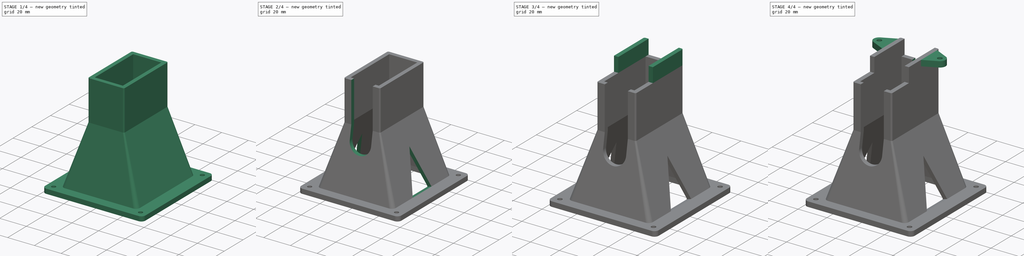
[diagram: build sequence overview — one tinted view per stage of 4, left to right]
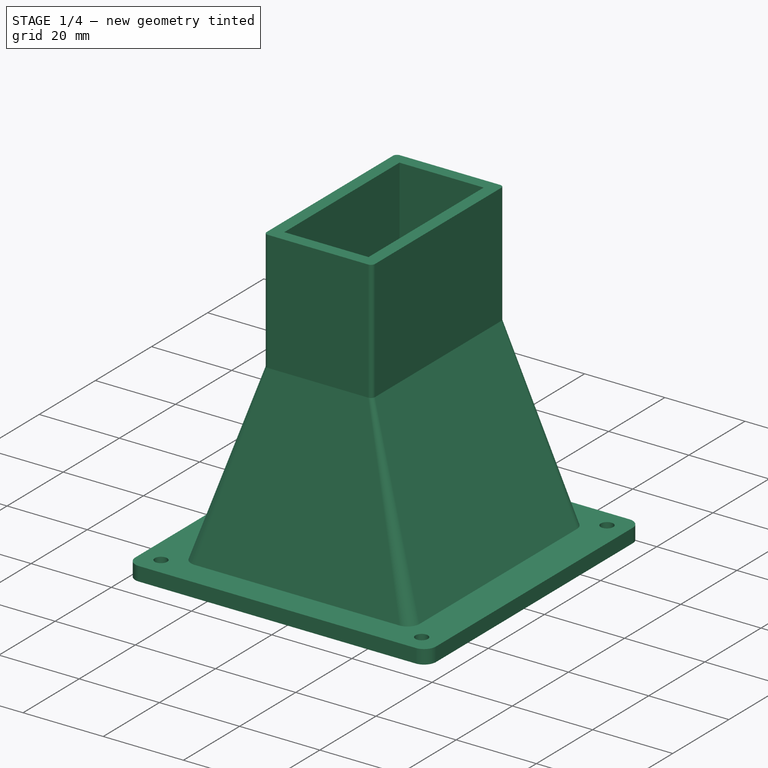
[diagram: stage 1 of 4 — iso view after this stage's code; geometry added in this stage tinted green]
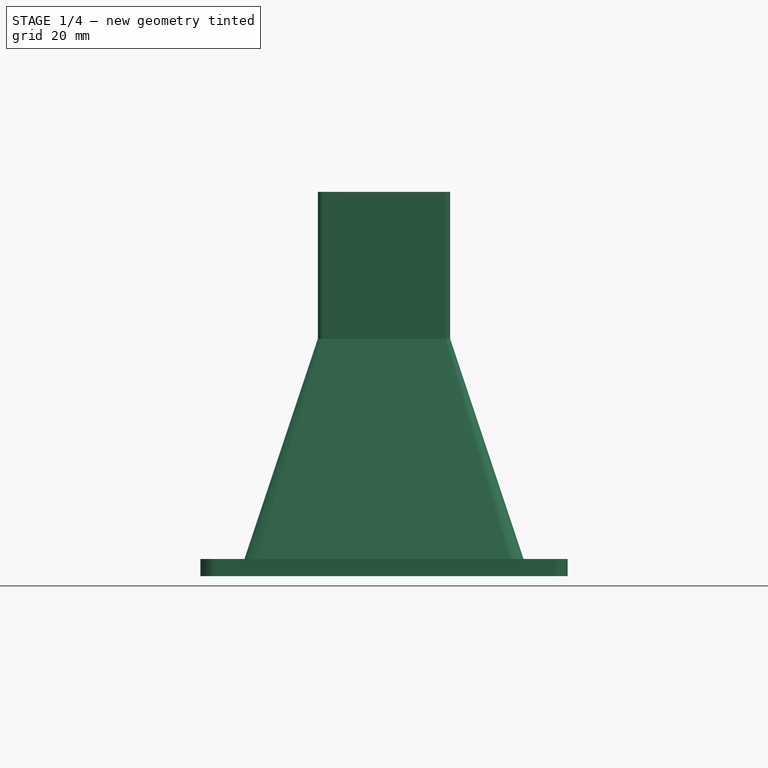
[diagram: stage 1 of 4 — front view after this stage's code; geometry added in this stage tinted green]
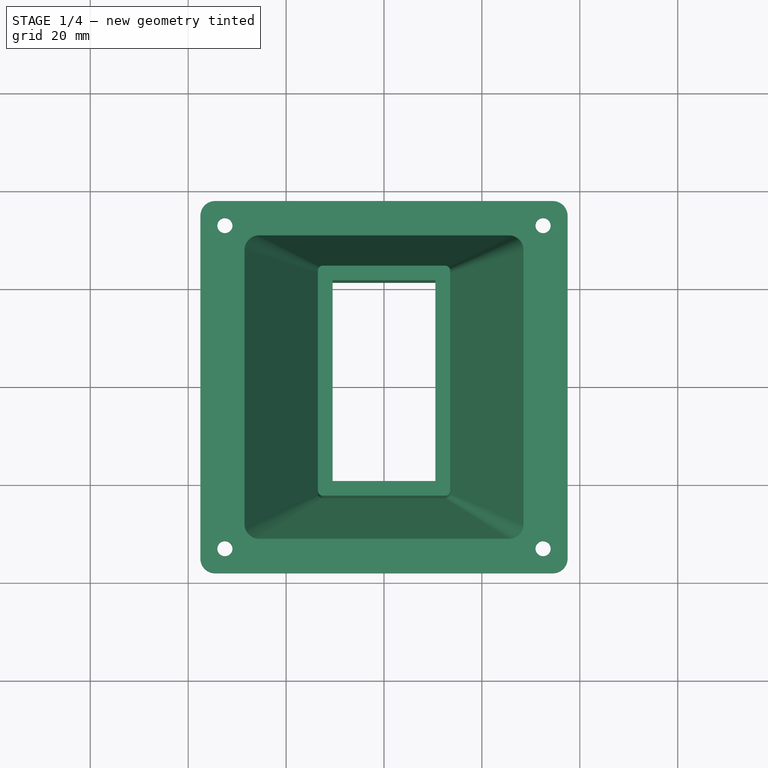
[diagram: stage 1 of 4 — top view after this stage's code; geometry added in this stage tinted green]
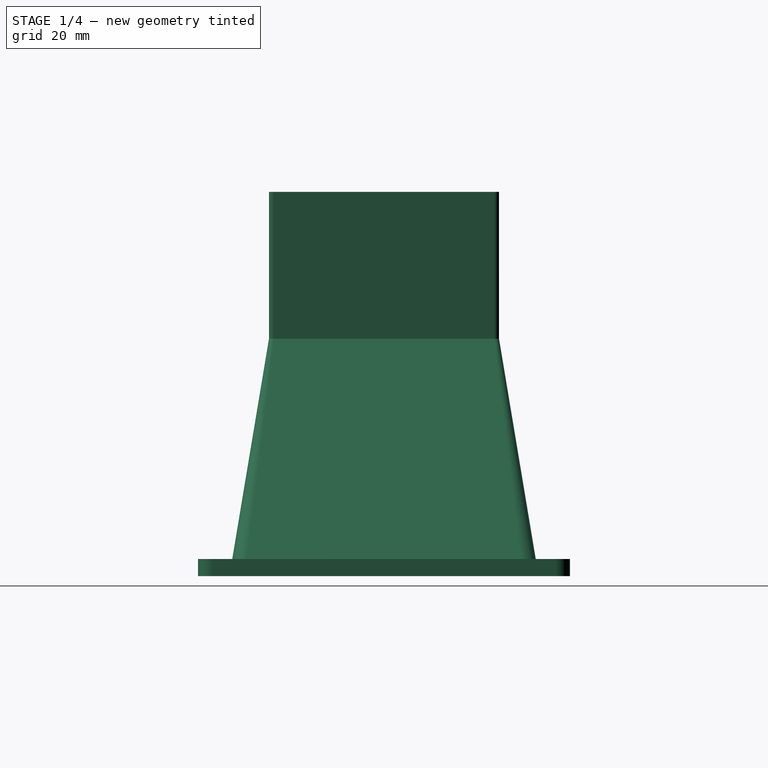
[diagram: stage 1 of 4 — right view after this stage's code; geometry added in this stage tinted green]
FCSTD DOCUMENT  (FreeCAD 0.21R33668 +26 (Git))
Label: 1_Stand_Main
License: All rights reserved
LicenseURL: http://en.wikipedia.org/wiki/All_rights_reserved
objects: Sketcher::SketchObject×8, PartDesign::Pad×4, PartDesign::Pocket×3, PartDesign::Mirrored×3, PartDesign::AdditiveLoft×1, PartDesign::Body×1
note: 28 computed .brp shape members not serialized (recipe doc carries the construction recipe); baked Part::Feature solids carry a one-line shape summary decoded from their .brp

FEATURE [Sketcher::SketchObject] Sketch  label="Base plate sketch"
  FullyConstrained = true
  MapMode = 5
  Support = -> [XY_Plane]
  sketch-geometry (20):
    g0: LineSegment StartX=-32.5 StartY=-33 StartZ=0 EndX=32.5 EndY=-33 EndZ=0
    g1: LineSegment StartX=32.5 StartY=-33 StartZ=0 EndX=32.5 EndY=33 EndZ=0
    g2: LineSegment StartX=32.5 StartY=33 StartZ=0 EndX=-32.5 EndY=33 EndZ=0
    g3: LineSegment StartX=-32.5 StartY=33 StartZ=0 EndX=-32.5 EndY=-33 EndZ=0
    g4: LineSegment StartX=-25.5 StartY=-28 StartZ=0 EndX=25.5 EndY=-28 EndZ=0
    g5: LineSegment StartX=25.5 StartY=-28 StartZ=0 EndX=25.5 EndY=28 EndZ=0
    g6: LineSegment StartX=25.5 StartY=28 StartZ=0 EndX=-25.5 EndY=28 EndZ=0
    g7: LineSegment StartX=-25.5 StartY=28 StartZ=0 EndX=-25.5 EndY=-28 EndZ=0
    g8: LineSegment StartX=-34.5 StartY=-38 StartZ=0 EndX=34.5 EndY=-38 EndZ=0
    g9: LineSegment StartX=37.5 StartY=-35 StartZ=0 EndX=37.5 EndY=35 EndZ=0
    g10: LineSegment StartX=34.5 StartY=38 StartZ=0 EndX=-34.5 EndY=38 EndZ=0
    g11: LineSegment StartX=-37.5 StartY=35 StartZ=0 EndX=-37.5 EndY=-35 EndZ=0
    g12: ArcOfCircle CenterX=-34.5 CenterY=35 CenterZ=0 NormalX=0 NormalY=0 NormalZ=1 AngleXU=0 Radius=3 StartAngle=1.5708 EndAngle=3.14159
    g13: ArcOfCircle CenterX=34.5 CenterY=35 CenterZ=0 NormalX=0 NormalY=0 NormalZ=1 AngleXU=0 Radius=3 StartAngle=-9e-16 EndAngle=1.5708
    g14: ArcOfCircle CenterX=34.5 CenterY=-35 CenterZ=0 NormalX=0 NormalY=0 NormalZ=1 AngleXU=0 Radius=3 StartAngle=4.71239 EndAngle=6.28319
    g15: ArcOfCircle CenterX=-34.5 CenterY=-35 CenterZ=0 NormalX=0 NormalY=0 NormalZ=1 AngleXU=0 Radius=3 StartAngle=3.14159 EndAngle=4.71239
    g16: Circle CenterX=-32.5 CenterY=33 CenterZ=0 NormalX=0 NormalY=0 NormalZ=1 AngleXU=0 Radius=1.55
    g17: Circle CenterX=-32.5 CenterY=-33 CenterZ=0 NormalX=0 NormalY=0 NormalZ=1 AngleXU=0 Radius=1.55
    g18: Circle CenterX=32.5 CenterY=33 CenterZ=0 NormalX=0 NormalY=0 NormalZ=1 AngleXU=0 Radius=1.55
    g19: Circle CenterX=32.5 CenterY=-33 CenterZ=0 NormalX=0 NormalY=0 NormalZ=1 AngleXU=0 Radius=1.55
  constraints (49):
    c: Coincident(g0,g1)
    c: Coincident(g1,g2)
    c: Coincident(g2,g3)
    c: Coincident(g3,g0)
    c: Horizontal(g0)
    c: Horizontal(g2)
    c: Vertical(g1)
    c: Vertical(g3)
    c: Symmetric(g0,g1,g-1)
    c: DistanceX(g2,g2) = 65
    c: DistanceY(g3,g3) = 66
    c: Coincident(g4,g5)
    c: Coincident(g5,g6)
    c: Coincident(g6,g7)
    c: Coincident(g7,g4)
    c: Horizontal(g4)
    c: Horizontal(g6)
    c: Vertical(g5)
    c: Vertical(g7)
    c: Horizontal(g8)
    c: Horizontal(g10)
    c: Vertical(g9)
    c: Vertical(g11)
    c: Tangent(g10,g12) = -1.5708
    c: Tangent(g11,g12) = -1.5708
    c: Tangent(g9,g13) = -1.5708
    c: Tangent(g10,g13) = -1.5708
    c: Tangent(g8,g14) = -1.5708
    c: Tangent(g9,g14) = -1.5708
    c: Tangent(g8,g15) = -1.5708
    c: Tangent(g11,g15) = -1.5708
    c: DistanceX(g2,g6) = 7
    c: DistanceY(g6,g2) = 5
    c: Symmetric(g4,g5,g-1)
    c: Symmetric(g11,g9,g-1)
    c: Equal(g12,g13)
    c: Equal(g13,g14)
    c: Equal(g14,g15)
    c: Radius(g12) = 3
    c: DistanceX(g1,g9) = 5
    c: DistanceY(g1,g10) = 5
    c: Equal(g16,g17)
    c: Equal(g17,g19)
    c: Equal(g19,g18)
    c: Diameter(g16) = 3.1
    c: Coincident(g16,g2)
    c: Coincident(g18,g1)
    c: Coincident(g19,g0)
    c: Coincident(g17,g0)
FEATURE [PartDesign::Pad] Pad  label="Base plate"
  Direction = (0,0,1)
  Length = 3.5
  Length2 = 10
  Profile = -> Sketch
  ReferenceAxis = -> Sketch [N_Axis]
  Type = 0
FEATURE [Sketcher::SketchObject] Sketch001  label="Stand bottom sketch"
  ExternalGeometry = -> [Pad]
  FullyConstrained = true
  MapMode = 5
  Placement = pos=(0,0,3.5) rot=(0,0,1;0rad)
  Support = -> [Pad]
  sketch-geometry (12):
    g0: LineSegment StartX=-25.5 StartY=-28 StartZ=0 EndX=25.5 EndY=-28 EndZ=0
    g1: LineSegment StartX=25.5 StartY=-28 StartZ=0 EndX=25.5 EndY=28 EndZ=0
    g2: LineSegment StartX=25.5 StartY=28 StartZ=0 EndX=-25.5 EndY=28 EndZ=0
    g3: LineSegment StartX=-25.5 StartY=28 StartZ=0 EndX=-25.5 EndY=-28 EndZ=0
    g4: LineSegment StartX=-25.5 StartY=-31 StartZ=0 EndX=25.5 EndY=-31 EndZ=0
    g5: LineSegment StartX=28.5 StartY=-28 StartZ=0 EndX=28.5 EndY=28 EndZ=0
    g6: LineSegment StartX=25.5 StartY=31 StartZ=0 EndX=-25.5 EndY=31 EndZ=0
    g7: LineSegment StartX=-28.5 StartY=28 StartZ=0 EndX=-28.5 EndY=-28 EndZ=0
    g8: ArcOfCircle CenterX=-25.5 CenterY=28 CenterZ=0 NormalX=0 NormalY=0 NormalZ=1 AngleXU=0 Radius=3 StartAngle=1.5708 EndAngle=3.14159
    g9: ArcOfCircle CenterX=25.5 CenterY=28 CenterZ=0 NormalX=0 NormalY=0 NormalZ=1 AngleXU=0 Radius=3 StartAngle=0 EndAngle=1.5708
    g10: ArcOfCircle CenterX=-25.5 CenterY=-28 CenterZ=0 NormalX=0 NormalY=0 NormalZ=1 AngleXU=0 Radius=3 StartAngle=3.14159 EndAngle=4.71239
    g11: ArcOfCircle CenterX=25.5 CenterY=-28 CenterZ=0 NormalX=0 NormalY=0 NormalZ=1 AngleXU=0 Radius=3 StartAngle=4.71239 EndAngle=6.28319
  constraints (29):
    c: Coincident(g0,g1)
    c: Coincident(g1,g2)
    c: Coincident(g2,g3)
    c: Coincident(g3,g0)
    c: Horizontal(g0)
    c: Horizontal(g2)
    c: Vertical(g1)
    c: Vertical(g3)
    c: Symmetric(g0,g1,g-1)
    c: Coincident(g2,g-3)
    c: Horizontal(g4)
    c: Horizontal(g6)
    c: Vertical(g5)
    c: Vertical(g7)
    c: Tangent(g6,g8) = -1.5708
    c: Tangent(g7,g8) = -1.5708
    c: Tangent(g5,g9) = -1.5708
    c: Tangent(g6,g9) = -1.5708
    c: Tangent(g4,g10) = -1.5708
    c: Tangent(g7,g10) = -1.5708
    c: Tangent(g4,g11) = -1.5708
    c: Tangent(g5,g11) = -1.5708
    c: Equal(g8,g9)
    c: Equal(g9,g10)
    c: Equal(g10,g11)
    c: Radius(g8) = 3
    c: Symmetric(g4,g6,g-1)
    c: DistanceX(g7,g2) = 3
    c: DistanceY(g2,g6) = 3
FEATURE [Sketcher::SketchObject] Sketch002  label="Stand top sketch"
  AttachmentOffset = pos=(0,0,45) rot=(0,0,1;0rad)
  FullyConstrained = true
  MapMode = 5
  Placement = pos=(0,0,48.5) rot=(0,0,1;0rad)
  Support = -> [Pad]
  sketch-geometry (12):
    g0: LineSegment StartX=-10.5 StartY=-20.5 StartZ=0 EndX=10.5 EndY=-20.5 EndZ=0
    g1: LineSegment StartX=10.5 StartY=-20.5 StartZ=0 EndX=10.5 EndY=20.5 EndZ=0
    g2: LineSegment StartX=10.5 StartY=20.5 StartZ=0 EndX=-10.5 EndY=20.5 EndZ=0
    g3: LineSegment StartX=-10.5 StartY=20.5 StartZ=0 EndX=-10.5 EndY=-20.5 EndZ=0
    g4: LineSegment StartX=-12.5 StartY=-23.5 StartZ=0 EndX=12.5 EndY=-23.5 EndZ=0
    g5: LineSegment StartX=13.5 StartY=-22.5 StartZ=0 EndX=13.5 EndY=22.5 EndZ=0
    g6: LineSegment StartX=12.5 StartY=23.5 StartZ=0 EndX=-12.5 EndY=23.5 EndZ=0
    g7: LineSegment StartX=-13.5 StartY=22.5 StartZ=0 EndX=-13.5 EndY=-22.5 EndZ=0
    g8: ArcOfCircle CenterX=-12.5 CenterY=22.5 CenterZ=0 NormalX=0 NormalY=0 NormalZ=1 AngleXU=0 Radius=1 StartAngle=1.5708 EndAngle=3.14159
    g9: ArcOfCircle CenterX=12.5 CenterY=22.5 CenterZ=0 NormalX=0 NormalY=0 NormalZ=1 AngleXU=0 Radius=1 StartAngle=-9e-16 EndAngle=1.5708
    g10: ArcOfCircle CenterX=12.5 CenterY=-22.5 CenterZ=0 NormalX=0 NormalY=0 NormalZ=1 AngleXU=0 Radius=1 StartAngle=4.71239 EndAngle=6.28319
    g11: ArcOfCircle CenterX=-12.5 CenterY=-22.5 CenterZ=0 NormalX=0 NormalY=0 NormalZ=1 AngleXU=0 Radius=1 StartAngle=3.14159 EndAngle=4.71239
  constraints (30):
    c: Coincident(g0,g1)
    c: Coincident(g1,g2)
    c: Coincident(g2,g3)
    c: Coincident(g3,g0)
    c: Horizontal(g0)
    c: Horizontal(g2)
    c: Vertical(g1)
    c: Vertical(g3)
    c: Symmetric(g0,g1,g-1)
    c: DistanceX(g2,g2) = 21
    c: DistanceY(g1,g1) = 41
    c: Horizontal(g4)
    c: Horizontal(g6)
    c: Vertical(g5)
    c: Vertical(g7)
    c: Tangent(g6,g8) = -1.5708
    c: Tangent(g7,g8) = -1.5708
    c: Tangent(g5,g9) = -1.5708
    c: Tangent(g6,g9) = -1.5708
    c: Tangent(g4,g10) = -1.5708
    c: Tangent(g5,g10) = -1.5708
    c: Tangent(g4,g11) = -1.5708
    c: Tangent(g7,g11) = -1.5708
    c: Equal(g11,g8)
    c: Equal(g8,g9)
    c: Equal(g9,g10)
    c: Symmetric(g7,g5,g-1)
    c: Radius(g8) = 1
    c: DistanceX(g7,g2) = 3
    c: DistanceY(g2,g6) = 3
FEATURE [PartDesign::AdditiveLoft] AdditiveLoft  label="Stand bottom"
  BaseFeature = -> Pad
  Closed = false
  Profile = -> Sketch001
  Ruled = true
  Sections = -> [Sketch002]
FEATURE [PartDesign::Pad] Pad001  label="Stand top"
  BaseFeature = -> AdditiveLoft
  Direction = (0,0,1)
  Length = 30
  Length2 = 10
  Profile = -> Sketch002
  ReferenceAxis = -> Sketch002 [N_Axis]
  Type = 0
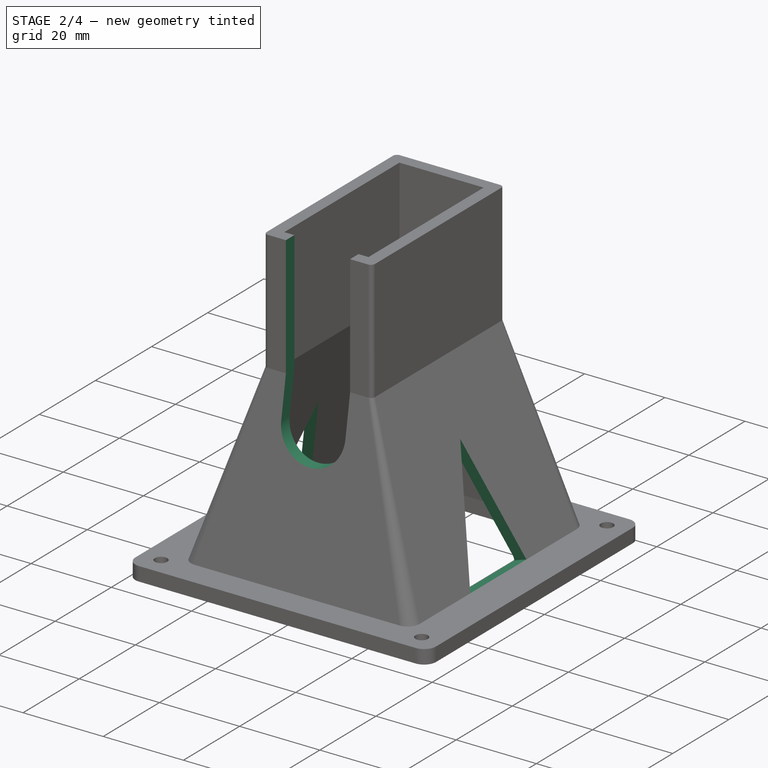
[diagram: stage 2 of 4 — iso view after this stage's code; geometry added in this stage tinted green]
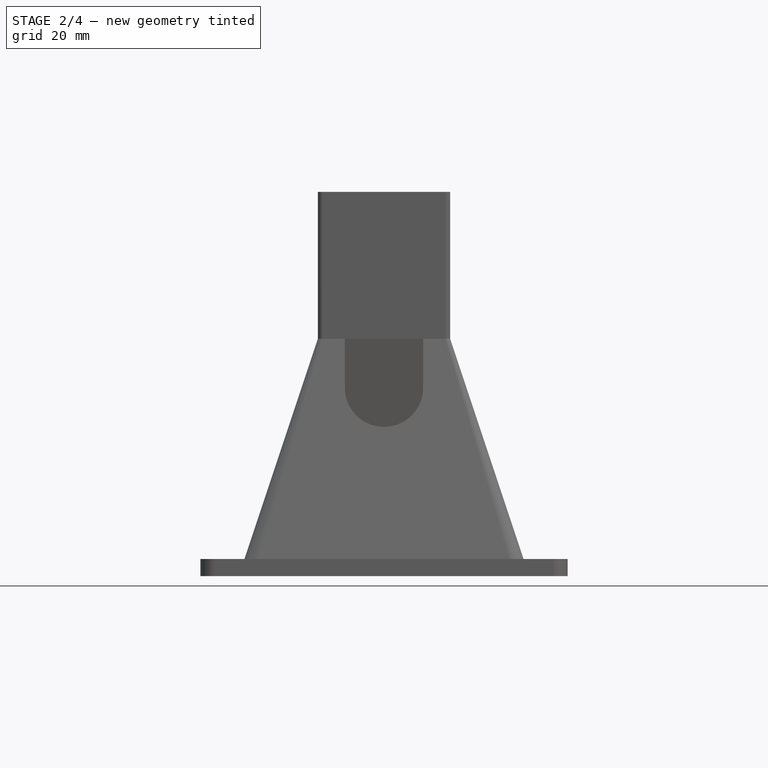
[diagram: stage 2 of 4 — front view after this stage's code; geometry added in this stage tinted green]
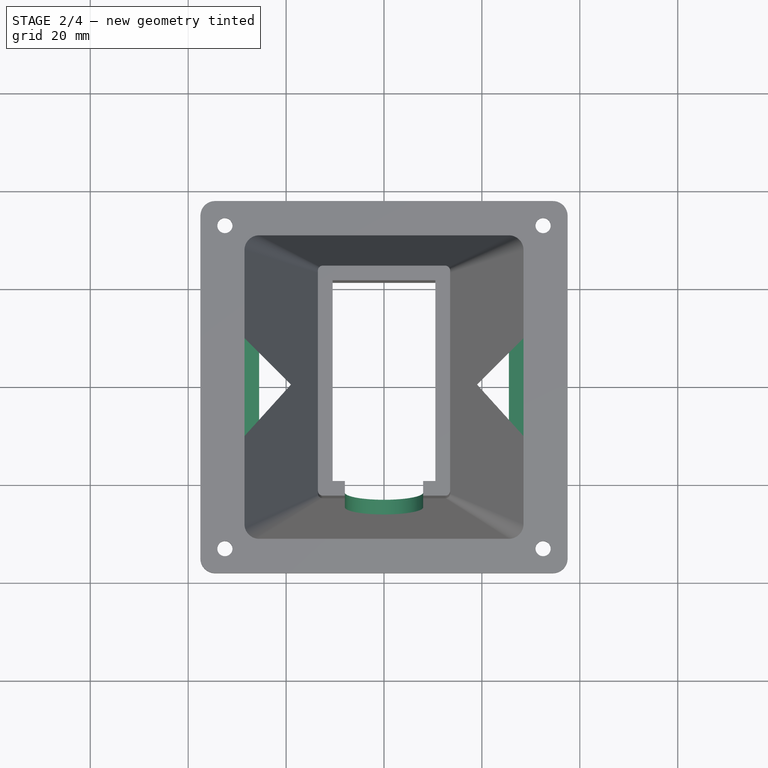
[diagram: stage 2 of 4 — top view after this stage's code; geometry added in this stage tinted green]
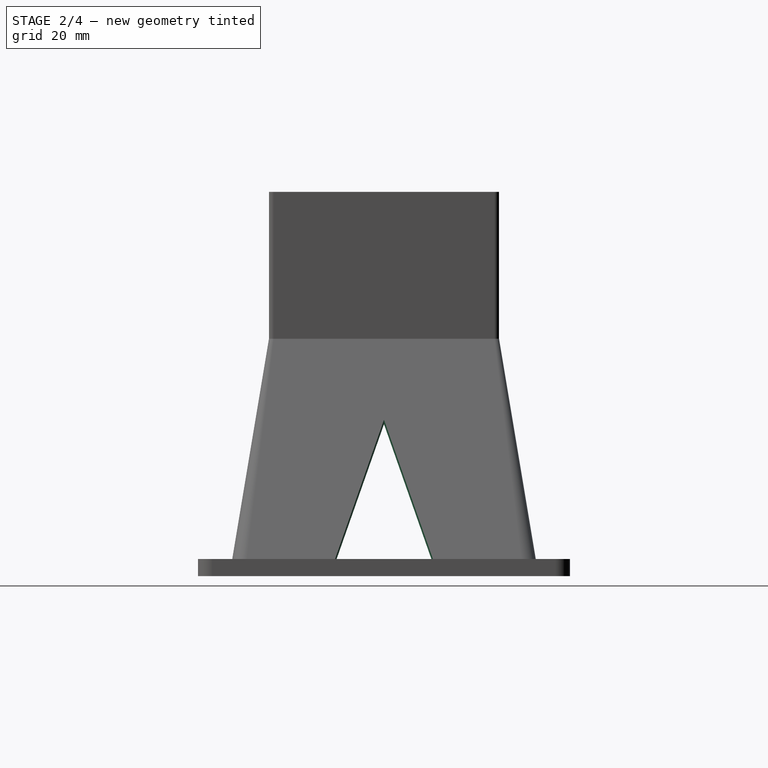
[diagram: stage 2 of 4 — right view after this stage's code; geometry added in this stage tinted green]
FEATURE [Sketcher::SketchObject] Sketch003  label="Cabel channel sketch"
  ExternalGeometry = -> [Pad001]
  FullyConstrained = true
  MapMode = 5
  Placement = pos=(0,-23.5,0) rot=(1,0,0;1.5708rad)
  Support = -> [Pad001]
  sketch-geometry (4):
    g0: LineSegment StartX=-8 StartY=78.5 StartZ=0 EndX=8 EndY=78.5 EndZ=0
    g1: LineSegment StartX=8 StartY=78.5 StartZ=0 EndX=8 EndY=38.5 EndZ=0
    g2: LineSegment StartX=-8 StartY=78.5 StartZ=0 EndX=-8 EndY=38.5 EndZ=0
    g3: ArcOfCircle CenterX=-4e-16 CenterY=38.5 CenterZ=0 NormalX=0 NormalY=0 NormalZ=1 AngleXU=0 Radius=8 StartAngle=3.14159 EndAngle=6.28319
  constraints (12):
    c: Horizontal(g0)
    c: Coincident(g0,g1)
    c: Vertical(g1)
    c: Coincident(g0,g2)
    c: Vertical(g2)
    c: Symmetric(g2,g1,g-2)
    c: Coincident(g3,g2)
    c: Coincident(g3,g1)
    c: Horizontal(g3,g2)
    c: DistanceX(g0,g0) = 16
    c: PointOnObject(g0,g-3)
    c: DistanceY(g1,g1) = 40
FEATURE [PartDesign::Pocket] Pocket  label="Cabel channel"
  BaseFeature = -> Pad001
  Direction = (0,1,-2e-16)
  Length = 20
  Length2 = 5
  Midplane = true
  Profile = -> Sketch003
  ReferenceAxis = -> Sketch003 [N_Axis]
  Type = 0
FEATURE [Sketcher::SketchObject] Sketch004  label="Cooler sketch"
  ExternalGeometry = -> [Pocket]
  FullyConstrained = true
  MapMode = 5
  Placement = pos=(-26.7,2e-16,8.9) rot=(0.504758,-0.504758,-0.700314;1.91972rad)
  Support = -> [Pocket]
  sketch-geometry (3):
    g0: LineSegment StartX=-10 StartY=-5.6921 StartZ=0 EndX=0 EndY=24.3079 EndZ=0
    g1: LineSegment StartX=0 StartY=24.3079 StartZ=0 EndX=10 EndY=-5.6921 EndZ=0
    g2: LineSegment StartX=10 StartY=-5.6921 StartZ=0 EndX=-10 EndY=-5.6921 EndZ=0
  constraints (9):
    c: PointOnObject(g0,g-3)
    c: PointOnObject(g0,g-2)
    c: Coincident(g0,g1)
    c: PointOnObject(g1,g-3)
    c: Coincident(g1,g2)
    c: Coincident(g2,g0)
    c: DistanceX(g2,g2) = 20
    c: Equal(g0,g1)
    c: DistanceY(g1,g0) = 30
FEATURE [PartDesign::Pocket] Pocket001  label="Cooler right"
  BaseFeature = -> Pocket
  Direction = (0.948683,-1e-16,-0.316228)
  Length = 5
  Length2 = 5
  Profile = -> Sketch004
  ReferenceAxis = -> Sketch004 [N_Axis]
  Type = 0
FEATURE [PartDesign::Mirrored] Mirrored  label="Cooler left"
  BaseFeature = -> Pocket001
  MirrorPlane = -> YZ_Plane
  Originals = -> [Pocket001]
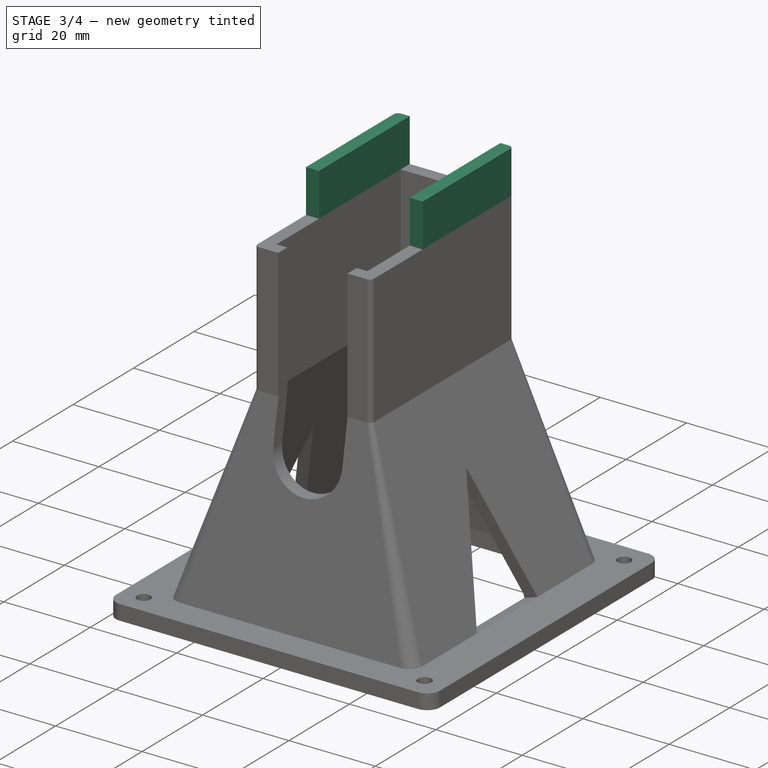
[diagram: stage 3 of 4 — iso view after this stage's code; geometry added in this stage tinted green]
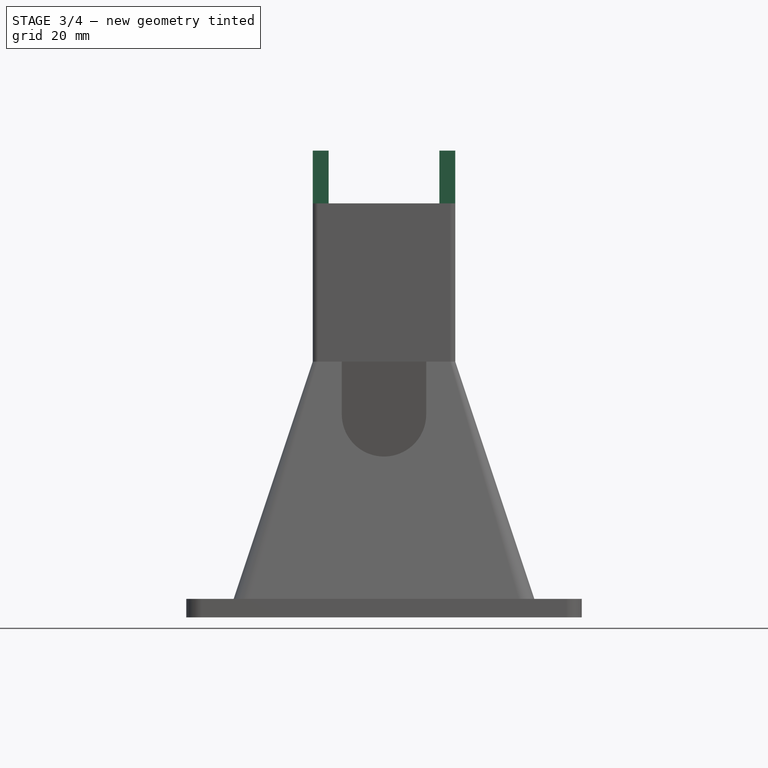
[diagram: stage 3 of 4 — front view after this stage's code; geometry added in this stage tinted green]
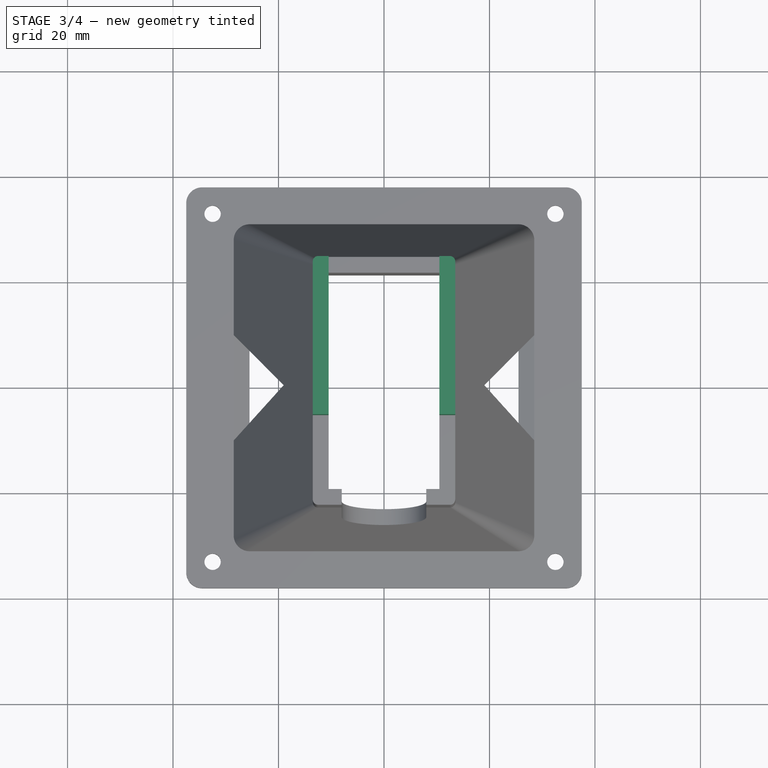
[diagram: stage 3 of 4 — top view after this stage's code; geometry added in this stage tinted green]
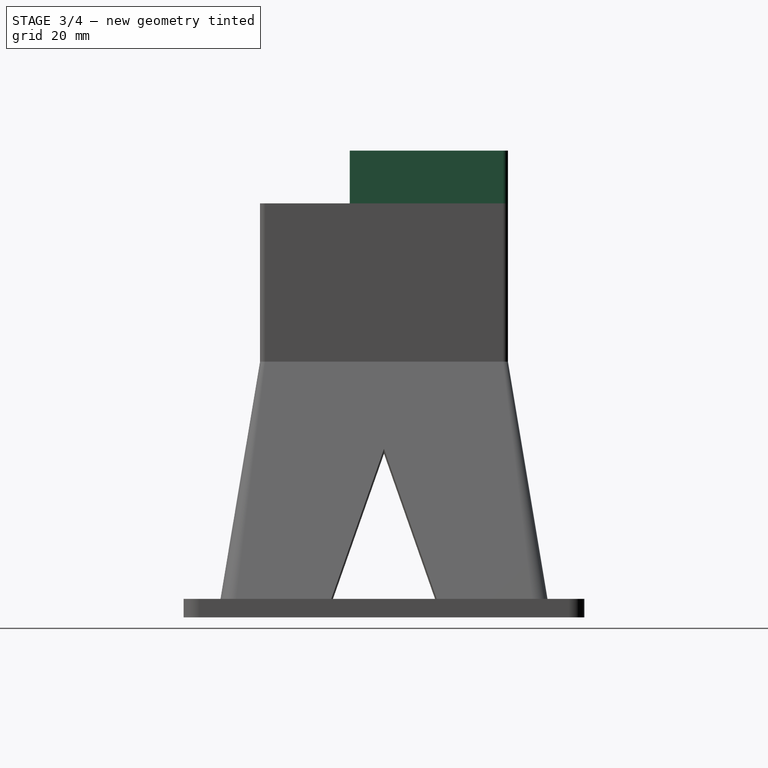
[diagram: stage 3 of 4 — right view after this stage's code; geometry added in this stage tinted green]
FEATURE [Sketcher::SketchObject] Sketch005
  ExternalGeometry = -> [Mirrored]
  FullyConstrained = true
  MapMode = 5
  Placement = pos=(0,0,78.5) rot=(0,0,1;0rad)
  Support = -> [Mirrored]
  sketch-geometry (5):
    g0: LineSegment StartX=-10.5 StartY=23.5 StartZ=0 EndX=-10.5 EndY=-6.5 EndZ=0
    g1: LineSegment StartX=-13.5 StartY=22.5 StartZ=0 EndX=-13.5 EndY=-6.5 EndZ=0
    g2: LineSegment StartX=-13.5 StartY=-6.5 StartZ=0 EndX=-10.5 EndY=-6.5 EndZ=0
    g3: LineSegment StartX=-10.5 StartY=23.5 StartZ=0 EndX=-12.5 EndY=23.5 EndZ=0
    g4: ArcOfCircle CenterX=-12.5 CenterY=22.5 CenterZ=0 NormalX=0 NormalY=0 NormalZ=1 AngleXU=0 Radius=1 StartAngle=1.5708 EndAngle=3.14159
  constraints (14):
    c: Vertical(g0)
    c: Vertical(g1)
    c: Coincident(g2,g1)
    c: Coincident(g2,g0)
    c: Horizontal(g3)
    c: Coincident(g3,g0)
    c: Horizontal(g2)
    c: Coincident(g1,g-5)
    c: Coincident(g3,g-5)
    c: DistanceY(g0,g0) = 30
    c: PointOnObject(g-3,g0)
    c: Coincident(g4,g1)
    c: Tangent(g4,g-5)
    c: Coincident(g4,g3)
FEATURE [PartDesign::Pad] Pad002
  BaseFeature = -> Mirrored
  Direction = (0,0,1)
  Length = 10
  Length2 = 10
  Profile = -> Sketch005
  ReferenceAxis = -> Sketch005 [N_Axis]
  Type = 0
FEATURE [PartDesign::Mirrored] Mirrored001
  BaseFeature = -> Pad002
  MirrorPlane = -> YZ_Plane
  Originals = -> [Pad002]
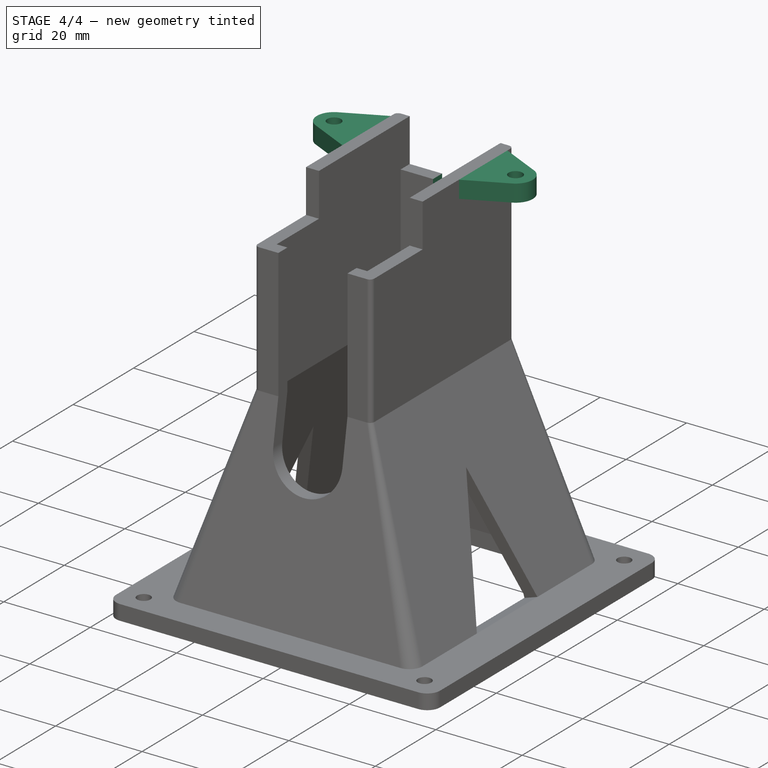
[diagram: stage 4 of 4 — iso view after this stage's code; geometry added in this stage tinted green]
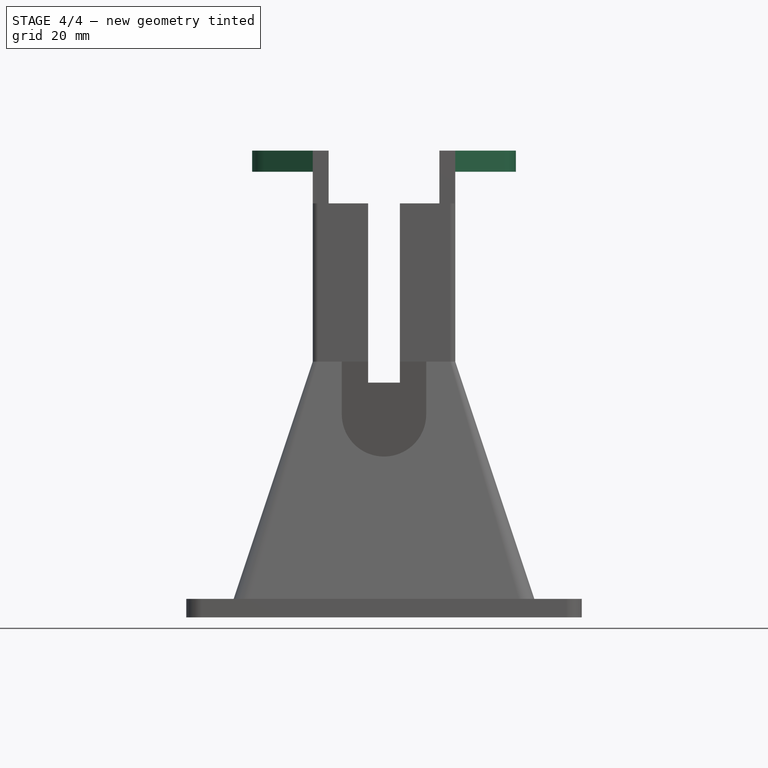
[diagram: stage 4 of 4 — front view after this stage's code; geometry added in this stage tinted green]
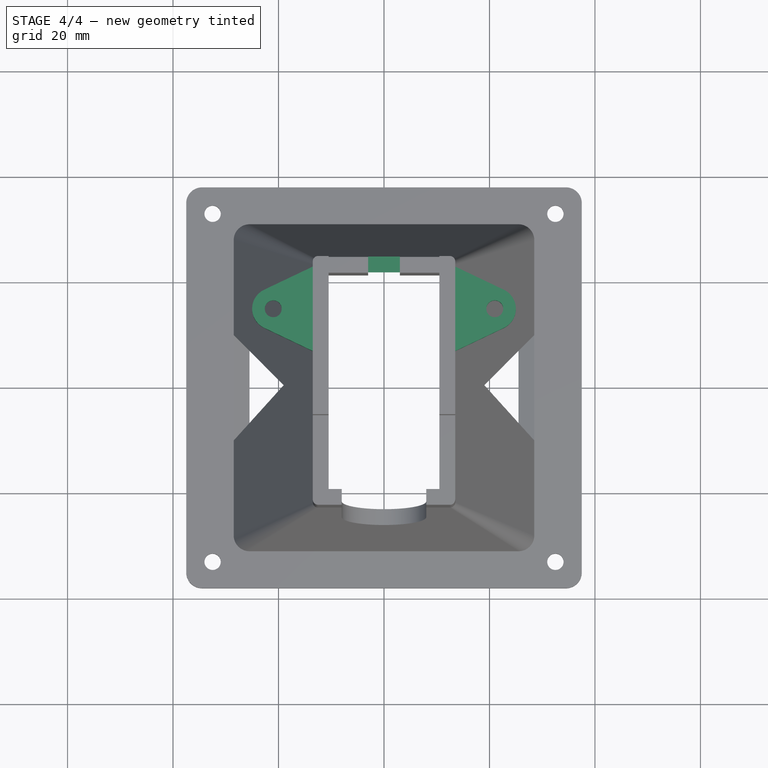
[diagram: stage 4 of 4 — top view after this stage's code; geometry added in this stage tinted green]
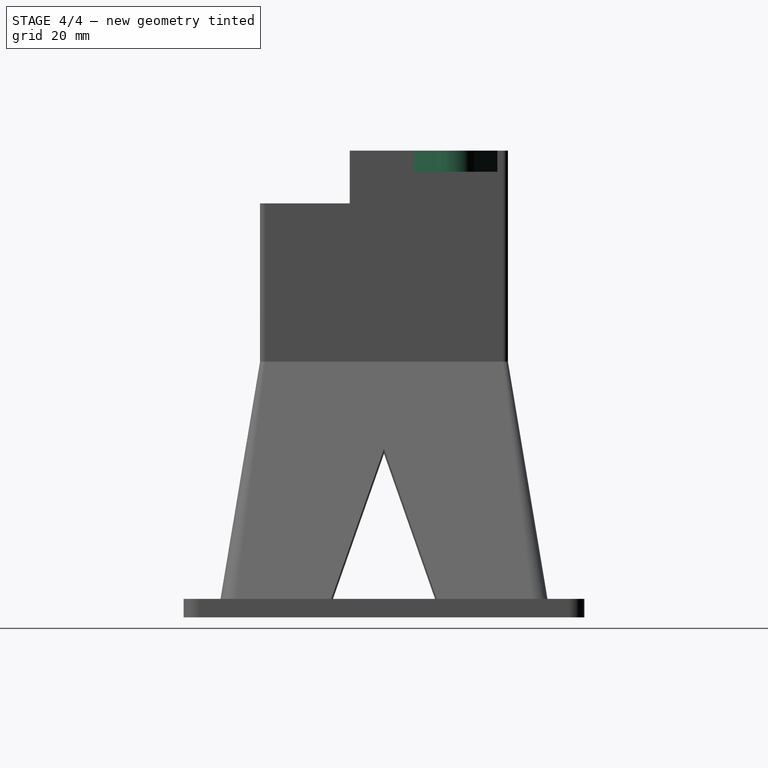
[diagram: stage 4 of 4 — right view after this stage's code; geometry added in this stage tinted green]
FEATURE [Sketcher::SketchObject] Sketch006
  ExternalGeometry = -> [Mirrored001]
  FullyConstrained = true
  MapMode = 5
  Placement = pos=(-1.97e-14,0,88.5) rot=(0,0,1;0rad)
  Support = -> [Mirrored001]
  sketch-geometry (5):
    g0: LineSegment StartX=22.7192 StartY=17.1117 StartZ=0 EndX=13.5 EndY=21.5 EndZ=0
    g1: LineSegment StartX=13.5 StartY=21.5 StartZ=0 EndX=13.5 EndY=5.5 EndZ=0
    g2: LineSegment StartX=13.5 StartY=5.5 StartZ=0 EndX=22.7192 EndY=9.88829 EndZ=0
    g3: ArcOfCircle CenterX=21 CenterY=13.5 CenterZ=0 NormalX=0 NormalY=0 NormalZ=1 AngleXU=0 Radius=4 StartAngle=5.15665 EndAngle=7.40972
    g4: Circle CenterX=21 CenterY=13.5 CenterZ=0 NormalX=0 NormalY=0 NormalZ=1 AngleXU=0 Radius=1.6
  constraints (13):
    c: Coincident(g0,g1)
    c: Vertical(g1)
    c: Coincident(g1,g2)
    c: Radius(g3) = 4
    c: Tangent(g3,g0) = -1.5708
    c: Tangent(g3,g2) = -1.5708
    c: Vertical(g0,g2)
    c: DistanceY(g1,g1) = 16
    c: PointOnObject(g0,g-3)
    c: DistanceX(g-1,g3) = 21
    c: DistanceY(g3,g-4) = 10
    c: Diameter(g4) = 3.2
    c: Coincident(g4,g3)
FEATURE [PartDesign::Pad] Pad003  label="Bracket right"
  BaseFeature = -> Mirrored001
  Direction = (-2e-16,0,1)
  Length = 4
  Length2 = 10
  Profile = -> Sketch006
  ReferenceAxis = -> Sketch006 [N_Axis]
  Reversed = true
  Type = 0
FEATURE [PartDesign::Mirrored] Mirrored002  label="Bracket left"
  BaseFeature = -> Pad003
  MirrorPlane = -> YZ_Plane
  Originals = -> [Pad003]
FEATURE [Sketcher::SketchObject] Sketch007
  ExternalGeometry = -> [Mirrored002]
  FullyConstrained = true
  MapMode = 5
  Placement = pos=(0,0,78.5) rot=(0,0,1;0rad)
  Support = -> [Mirrored002]
  sketch-geometry (4):
    g0: LineSegment StartX=-3 StartY=20.5 StartZ=0 EndX=3 EndY=20.5 EndZ=0
    g1: LineSegment StartX=3 StartY=20.5 StartZ=0 EndX=3 EndY=25.5 EndZ=0
    g2: LineSegment StartX=3 StartY=25.5 StartZ=0 EndX=-3 EndY=25.5 EndZ=0
    g3: LineSegment StartX=-3 StartY=25.5 StartZ=0 EndX=-3 EndY=20.5 EndZ=0
  constraints (11):
    c: Coincident(g0,g1)
    c: Coincident(g1,g2)
    c: Coincident(g2,g3)
    c: Coincident(g3,g0)
    c: Horizontal(g0)
    c: Vertical(g1)
    c: Vertical(g3)
    c: Symmetric(g1,g2,g-2)
    c: DistanceX(g2,g2) = 6
    c: PointOnObject(g0,g-3)
    c: DistanceY(g3,g3) = 5
FEATURE [PartDesign::Pocket] Pocket002
  BaseFeature = -> Mirrored002
  Direction = (0,0,-1)
  Length = 34
  Length2 = 5
  Profile = -> Sketch007
  ReferenceAxis = -> Sketch007 [N_Axis]
  Type = 0
FEATURE [PartDesign::Body] Body
  Group = -> [Sketch,Pad,Sketch001,Sketch002,AdditiveLoft,Pad001,Sketch003,Pocket,Sketch004,Pocket001,Mirrored,Sketch005,Pad002,Mirrored001,Sketch006,Pad003,Mirrored002,Sketch007,Pocket002]
  Origin = -> Origin
  Tip = -> Pocket002
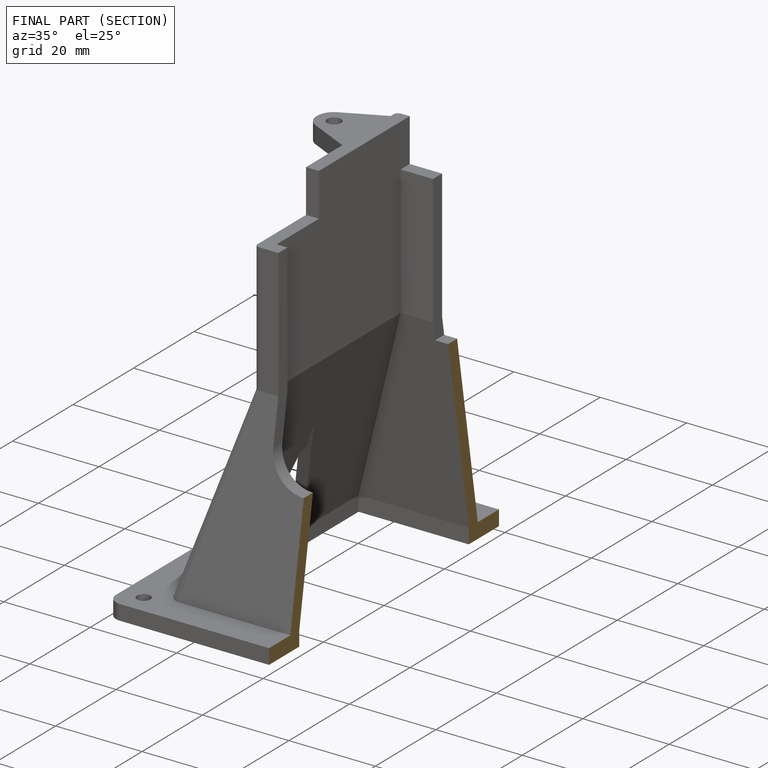
[diagram: finished part — half-section view (interior)]
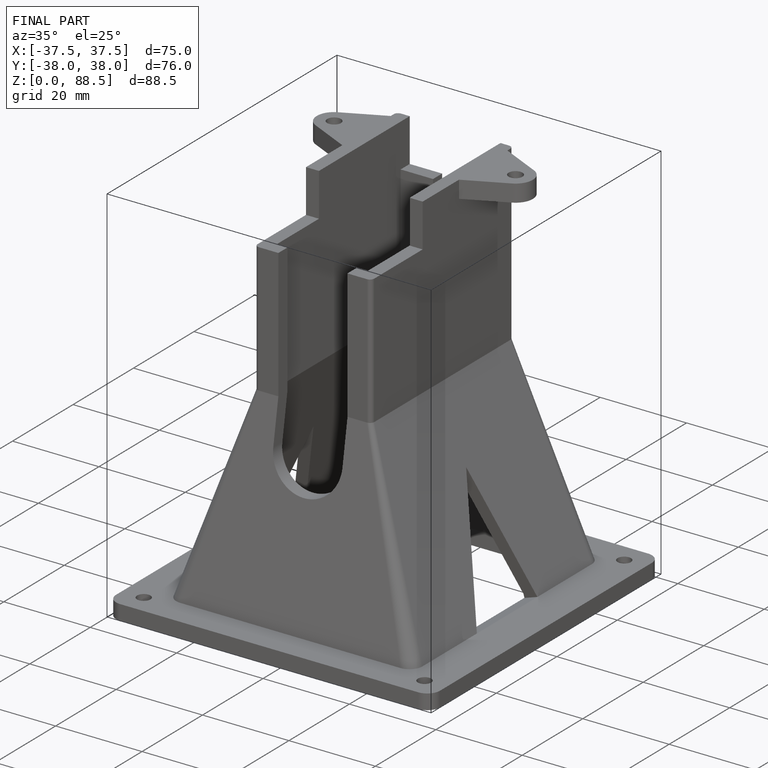
[diagram: finished part — iso view with bounding-box wireframe]
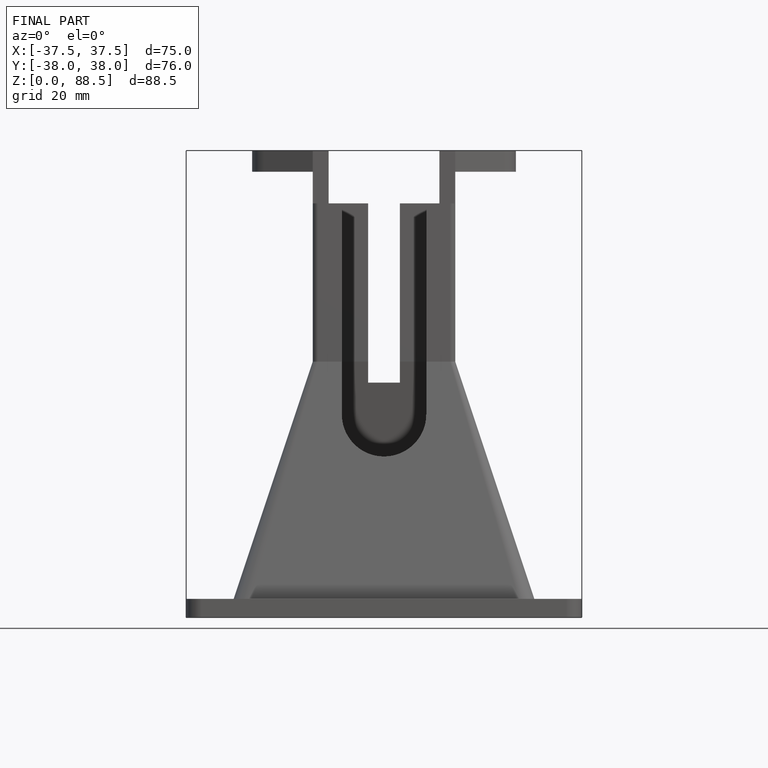
[diagram: finished part — front view with bounding-box wireframe]
